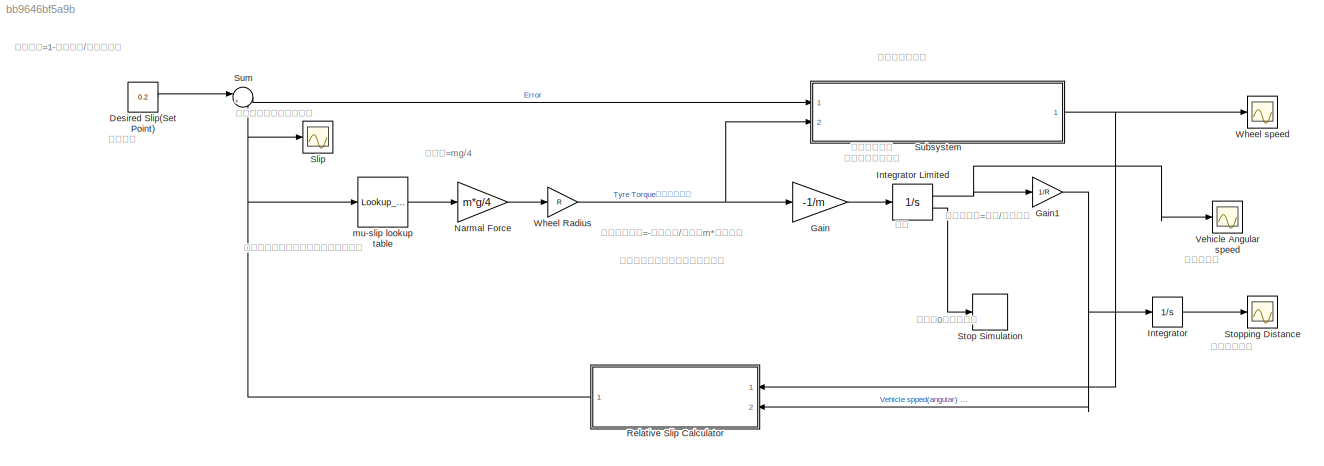
MODEL slx_bb9646bf5a9b
KIND model
CONFIG AbsTol = auto
CONFIG EnableMultiTasking = off
CONFIG FixedStep = 0.01
CONFIG MaxStep = auto
CONFIG MinStep = auto
CONFIG RelTol = 1e-3
CONFIG SampleTimeConstraint = Unconstrained
CONFIG SolverName = FixedStepAuto
CONFIG StartTime = 0.0
CONFIG StopTime = 25
BLOCK [Constant] Desired Slip(Set Point)
  Value = 0.2
BLOCK [Gain] Gain
  Gain = -1/m
BLOCK [Gain] Gain1
  Gain = 1/R
BLOCK [Integrator] Integrator
  Ports = [1, 1]
BLOCK [Integrator] Integrator Limited
  InitialCondition = v0
  LimitOutput = on
  LowerSaturationLimit = 0
  Ports = [1, 2]
  ShowSaturationPort = on
  UpperSaturationLimit = 1000
BLOCK [Gain] Narmal Force
  Gain = m*g/4
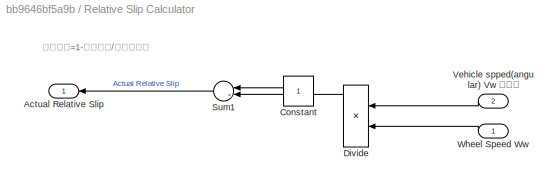
BLOCK [SubSystem] Relative Slip Calculator
  Ports = [2, 1]
  RequestExecContextInheritance = off
BLOCK [Outport] Relative Slip Calculator/Actual Relative Slip
BLOCK [Constant] Relative Slip Calculator/Constant
BLOCK [Product] Relative Slip Calculator/Divide
  Inputs = /*
  Ports = [2, 1]
BLOCK [Sum] Relative Slip Calculator/Sum1
  Inputs = |+-
  Ports = [2, 1]
BLOCK [Inport] Relative Slip Calculator/Vehicle spped(angular) Vw 角速度
  Port = 2
BLOCK [Inport] Relative Slip Calculator/Wheel Speed Ww
BLOCK [Scope] Slip
  Floating = off
  NumInputPorts = 1
  Ports = [1]
  ScopeSpecificationString = Simulink.scopes.TimeScopeBlockCfg('CurrentConfiguration', extmgr.ConfigurationSet(extmgr.Configuration('Core','General UI',true),extmgr.Configuration('Core','Source UI',true),extmgr.Configuration('Sources','WiredSimulink',true,'DataLoggingVariableName','ScopeData3'),extmgr.Configuration('Visuals','Time Domain',true,'SerializedDisplays',{struct('MinYLimReal','-0.125','MaxYLimReal','1.125','YLabelRe...<+1371ch>
BLOCK [Stop] Stop Simulation
BLOCK [Scope] Stopping Distance
  Floating = off
  NumInputPorts = 1
  Ports = [1]
  ScopeSpecificationString = Simulink.scopes.TimeScopeBlockCfg('CurrentConfiguration', extmgr.ConfigurationSet(extmgr.Configuration('Core','General UI',true),extmgr.Configuration('Core','Source UI',true),extmgr.Configuration('Sources','WiredSimulink',true,'DataLoggingVariableName','ScopeData2'),extmgr.Configuration('Visuals','Time Domain',true,'SerializedDisplays',{struct('MinYLimReal','-37.96283','MaxYLimReal','341.66543','Y...<+1379ch>
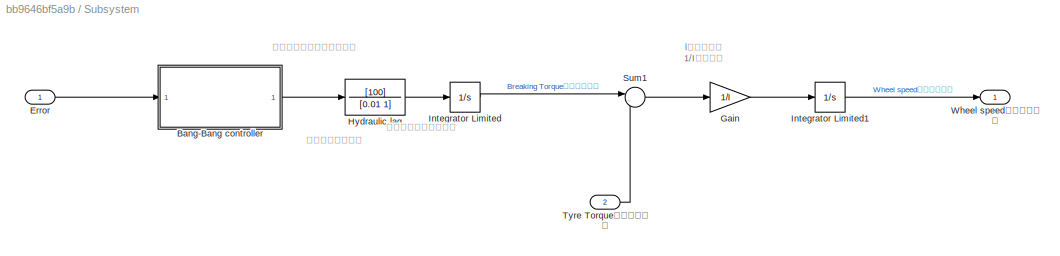
BLOCK [SubSystem] Subsystem
  Ports = [2, 1]
  RequestExecContextInheritance = off
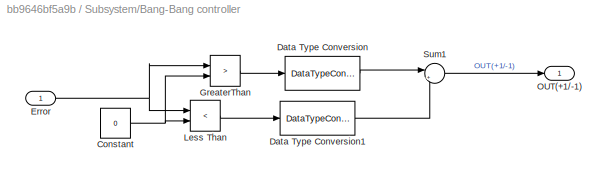
BLOCK [SubSystem] Subsystem/Bang-Bang controller
  Ports = [1, 1]
  RequestExecContextInheritance = off
BLOCK [Constant] Subsystem/Bang-Bang controller/Constant
  Value = 0
BLOCK [DataTypeConversion] Subsystem/Bang-Bang controller/Data Type Conversion
  OutDataTypeStr = double
  SaturateOnIntegerOverflow = off
BLOCK [DataTypeConversion] Subsystem/Bang-Bang controller/Data Type Conversion1
  OutDataTypeStr = double
  SaturateOnIntegerOverflow = off
BLOCK [Inport] Subsystem/Bang-Bang controller/Error
BLOCK [RelationalOperator] Subsystem/Bang-Bang controller/GreaterThan
  InputSameDT = off
  Operator = >
  OutDataTypeStr = boolean
  Ports = [2, 1]
  RndMeth = Simplest
BLOCK [RelationalOperator] Subsystem/Bang-Bang controller/Less Than
  InputSameDT = off
  Operator = <
  OutDataTypeStr = boolean
  Ports = [2, 1]
  RndMeth = Simplest
BLOCK [Outport] Subsystem/Bang-Bang controller/OUT(+1//-1)
BLOCK [Sum] Subsystem/Bang-Bang controller/Sum1
  Inputs = |+-
  Ports = [2, 1]
BLOCK [Inport] Subsystem/Error
BLOCK [Gain] Subsystem/Gain
  Gain = 1/I
BLOCK [TransferFcn] Subsystem/Hydraulic lag
  Denominator = [0.01 1]
  Numerator = [100]
BLOCK [Integrator] Subsystem/Integrator Limited
  LimitOutput = on
  LowerSaturationLimit = 0
  Ports = [1, 1]
  UpperSaturationLimit = 1000
BLOCK [Integrator] Subsystem/Integrator Limited1
  InitialCondition = v0/R
  LimitOutput = on
  LowerSaturationLimit = 0
  Ports = [1, 1]
  UpperSaturationLimit = 1000
BLOCK [Sum] Subsystem/Sum1
  Inputs = |-+
  Ports = [2, 1]
BLOCK [Inport] Subsystem/Tyre Torque（轮胎扭矩）
  Port = 2
BLOCK [Outport] Subsystem/Wheel speed（车轮速度）
BLOCK [Sum] Sum
  Inputs = |+-
  Ports = [2, 1]
BLOCK [Scope] Vehicle Angular speed
  Floating = off
  NumInputPorts = 1
  Ports = [1]
  ScopeSpecificationString = Simulink.scopes.TimeScopeBlockCfg('CurrentConfiguration', extmgr.ConfigurationSet(extmgr.Configuration('Core','General UI',true),extmgr.Configuration('Core','Source UI',true),extmgr.Configuration('Sources','WiredSimulink',true,'DataLoggingVariableName','ScopeData1'),extmgr.Configuration('Visuals','Time Domain',true,'SerializedDisplays',{struct('MinYLimReal','-5.48451','MaxYLimReal','49.49828','YLa...<+1383ch>
BLOCK [Gain] Wheel Radius
  Gain = R
BLOCK [Scope] Wheel speed
  Floating = off
  NumInputPorts = 1
  Ports = [1]
  ScopeSpecificationString = Simulink.scopes.TimeScopeBlockCfg('CurrentConfiguration', extmgr.ConfigurationSet(extmgr.Configuration('Core','General UI',true),extmgr.Configuration('Core','Source UI',true),extmgr.Configuration('Sources','WiredSimulink',true),extmgr.Configuration('Visuals','Time Domain',true,'SerializedDisplays',{struct('MinYLimReal','-4.4','MaxYLimReal','39.6','YLabelReal','','MinYLimMag','0.00000','MaxYLimMag'...<+1309ch>
BLOCK [Lookup_n-D] mu-slip lookup table
  BreakpointsForDimension1 = [0,0.05,0.1,0.15,0.2,0.25,0.3,0.35,0.4,0.45,0.5,0.55,0.6,0.65,0.7,0.75,0.8,0.85,0.9,0.95,1]
  InputPortMap = u0
  InternalRulePriority = Speed
  NumberOfTableDimensions = 1
  Ports = [1, 1]
  RndMeth = Simplest
  Table = [0,0.4,0.8,0.97,1,0.98,0.96,0.94,0.92,0.9,0.88,0.855,0.83,0.81,0.79,0.77,0.75,0.73,0.72,0.71,0.7]
ANNOTATION (root): 制动扭矩控制器
ANNOTATION (root): 刹车制动距离
ANNOTATION (root): 实际滑动=1-车角速度/车轮角速度
ANNOTATION (root): 查找车辆速度 饱和上限值为刹车
ANNOTATION (root): 模拟随滑动时间变化的轮胎间摩擦系数
ANNOTATION (root): 法向力=mg/4
ANNOTATION (root): 滑动系数
ANNOTATION (root): 积分
ANNOTATION (root): 车辆角加速度=-轮胎扭矩/车质量m*车轮半径
ANNOTATION (root): 车辆角速度
ANNOTATION (root): 车辆角速度=速度/车轮半径
ANNOTATION (root): 车辆角速度为车辆角加速度的积分
ANNOTATION (root): 车速为0时停止模拟
ANNOTATION (root): 随着时间变化的车辆滑动
ANNOTATION Relative Slip Calculator: 实际滑动=1-车角速度/车轮角速度
ANNOTATION Subsystem: l为转动惯量 1/I为加速度
ANNOTATION Subsystem: 中断后的液压制动
ANNOTATION Subsystem: 表示应用终端后的液压滞后
ANNOTATION Subsystem: 车轮速度（初始速度）
LINE Desired Slip(Set Point):1 -> Sum:1
NET Gain1:1 -> Integrator:1, Relative Slip Calculator:2
LINE Gain:1 -> Integrator Limited:1
NET Integrator Limited:1 -> Gain1:1, Vehicle Angular speed:1
LINE Integrator Limited:2 -> Stop Simulation:1
LINE Integrator:1 -> Stopping Distance:1
LINE Narmal Force:1 -> Wheel Radius:1
LINE Relative Slip Calculator/Constant:1 -> Relative Slip Calculator/Sum1:1
LINE Relative Slip Calculator/Divide:1 -> Relative Slip Calculator/Sum1:2
LINE Relative Slip Calculator/Sum1:1 -> Relative Slip Calculator/Actual Relative Slip:1
LINE Relative Slip Calculator/Vehicle spped(angular) Vw 角速度:1 -> Relative Slip Calculator/Divide:1
LINE Relative Slip Calculator/Wheel Speed Ww:1 -> Relative Slip Calculator/Divide:2
NET Relative Slip Calculator:1 -> Slip:1, Sum:2, mu-slip lookup table:1
NET Subsystem/Bang-Bang controller/Constant:1 -> Subsystem/Bang-Bang controller/GreaterThan:2, Subsystem/Bang-Bang controller/Less Than:2
LINE Subsystem/Bang-Bang controller/Data Type Conversion1:1 -> Subsystem/Bang-Bang controller/Sum1:2
LINE Subsystem/Bang-Bang controller/Data Type Conversion:1 -> Subsystem/Bang-Bang controller/Sum1:1
NET Subsystem/Bang-Bang controller/Error:1 -> Subsystem/Bang-Bang controller/GreaterThan:1, Subsystem/Bang-Bang controller/Less Than:1
LINE Subsystem/Bang-Bang controller/GreaterThan:1 -> Subsystem/Bang-Bang controller/Data Type Conversion:1
LINE Subsystem/Bang-Bang controller/Less Than:1 -> Subsystem/Bang-Bang controller/Data Type Conversion1:1
LINE Subsystem/Bang-Bang controller/Sum1:1 -> Subsystem/Bang-Bang controller/OUT(+1//-1):1
LINE Subsystem/Bang-Bang controller:1 -> Subsystem/Hydraulic lag:1
LINE Subsystem/Error:1 -> Subsystem/Bang-Bang controller:1
LINE Subsystem/Gain:1 -> Subsystem/Integrator Limited1:1
LINE Subsystem/Hydraulic lag:1 -> Subsystem/Integrator Limited:1
LINE Subsystem/Integrator Limited1:1 -> Subsystem/Wheel speed（车轮速度）:1
LINE Subsystem/Integrator Limited:1 -> Subsystem/Sum1:1
LINE Subsystem/Sum1:1 -> Subsystem/Gain:1
LINE Subsystem/Tyre Torque（轮胎扭矩）:1 -> Subsystem/Sum1:2
NET Subsystem:1 -> Relative Slip Calculator:1, Wheel speed:1
LINE Sum:1 -> Subsystem:1
NET Wheel Radius:1 -> Gain:1, Subsystem:2
LINE mu-slip lookup table:1 -> Narmal Force:1
note: NET lines group one-source signal fan-out (src -> all destinations, sorted); 1:1 wires keep LINE
